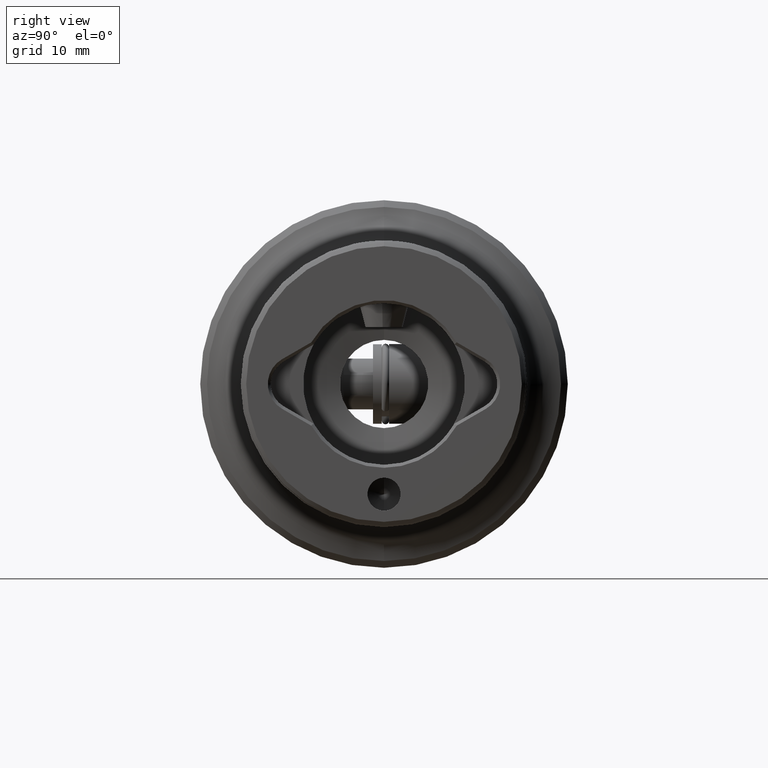
[diagram: clean part render]
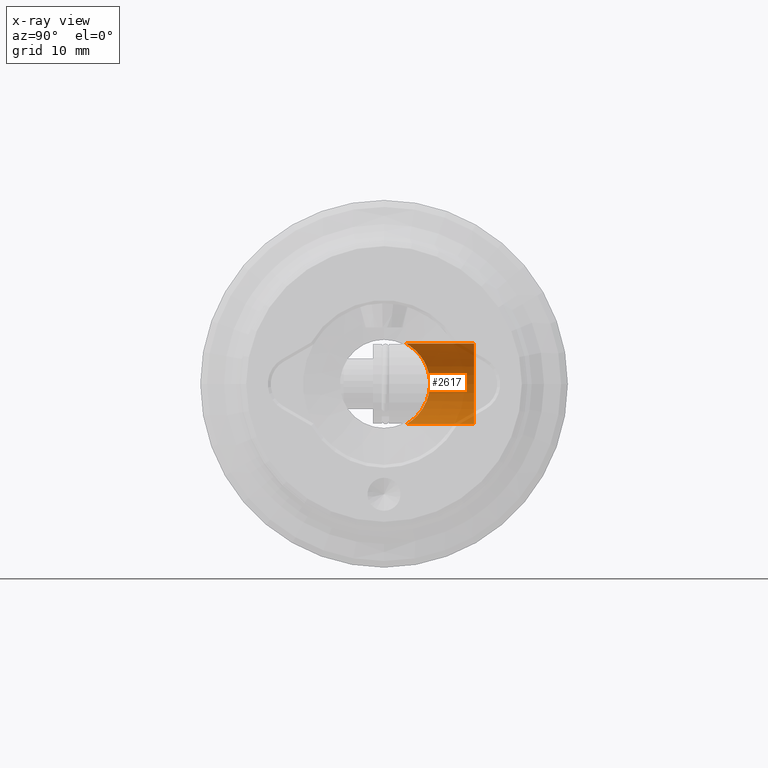
[diagram: x-ray — body ghosted, one internal face saturated and labeled with its STEP entity id]
A machine part, right view, then the same camera in x-ray: the body is ghosted and one INTERNAL B-rep face — a face not visible from any outside direction — is saturated and labeled: STEP entity #2617.
In plain terms, the highlighted cylindrical surface (partial cylindrical patch) has radius 5.5 mm, axis along (0, 1, 0).
Its self-contained STEP definition (entity closure, byte-faithful):
#8 = CARTESIAN_POINT ( 'NONE',  ( 22.50000000000000700, 2.968585521759487200, 5.499999999999996400 ) ) ;
#38 = FACE_OUTER_BOUND ( 'NONE', #5353, .T. ) ;
#144 = AXIS2_PLACEMENT_3D ( 'NONE', #1793, #4799, #2224 ) ;
#165 = CARTESIAN_POINT ( 'NONE',  ( 22.50000000000000700, -25.00000000000000000, -5.499999999999996400 ) ) ;
#206 = CARTESIAN_POINT ( 'NONE',  ( 22.50000000000000700, 2.968585521759487200, 5.499999999999996400 ) ) ;
#210 = CARTESIAN_POINT ( 'NONE',  ( 18.79748459643139200, 4.745055736843751100, -4.070631244202221700 ) ) ;
#416 = CARTESIAN_POINT ( 'NONE',  ( 19.17298075790106900, 4.454606669843920000, 4.392456829189876900 ) ) ;
#564 = VECTOR ( 'NONE', #3811, 1000.000000000000000 ) ;
#612 = CARTESIAN_POINT ( 'NONE',  ( 21.72916937340221100, 3.061285681054088000, -5.449108454026648100 ) ) ;
#627 = CARTESIAN_POINT ( 'NONE',  ( 18.21016640339858500, 5.215641007270033200, -3.459519080190087700 ) ) ;
#654 = CARTESIAN_POINT ( 'NONE',  ( 22.50000000000000700, 2.968585521759486800, -5.499999999999996400 ) ) ;
#828 = CARTESIAN_POINT ( 'NONE',  ( 16.99887135937604700, 6.250993202752751700, 0.3723303443689829900 ) ) ;
#842 = CARTESIAN_POINT ( 'NONE',  ( 20.02562587887231900, 3.856253520574957500, 4.923804579184304600 ) ) ;
#1019 = CIRCLE ( 'NONE', #1810, 5.499999999999998200 ) ;
#1033 = CARTESIAN_POINT ( 'NONE',  ( 21.18087411384810500, 3.244131601536866400, -5.342631782393732800 ) ) ;
#1056 = CARTESIAN_POINT ( 'NONE',  ( 17.81401226199082200, 5.546960356568337900, -2.885089781522731200 ) ) ;
#1184 = VERTEX_POINT ( 'NONE', #2763 ) ;
#1256 = CARTESIAN_POINT ( 'NONE',  ( 17.15976912786905800, 6.109844199950262400, 1.329900002426726200 ) ) ;
#1269 = CARTESIAN_POINT ( 'NONE',  ( 20.65816585437852000, 3.490447866518317600, 5.185465100041821700 ) ) ;
#1437 = DIRECTION ( 'NONE',  ( 0.0000000000000000000, 0.0000000000000000000, 1.000000000000000000 ) ) ;
#1466 = CARTESIAN_POINT ( 'NONE',  ( 20.66994730734429800, 3.484237801860867300, -5.189627656220222800 ) ) ;
#1481 = CARTESIAN_POINT ( 'NONE',  ( 17.55222084519617500, 5.769883443143622300, -2.409056519520630600 ) ) ;
#1550 = B_SPLINE_CURVE_WITH_KNOTS ( 'NONE', 3,
 ( #4882, #5283, #3158, #612, #3594, #1033, #4027, #1466, #4471, #1890, #4898, #2332, #5316, #2757, #210, #3188, #627, #3612, #1056, #4054, #1481, #4493, #1920, #4917, #3722, #2017, #3381, #828, #3812, #1256, #4253, #1681, #4688, #2118, #5112, #2542, #5545, #2969, #416, #3394, #842, #3833, #1269, #4267, #1705, #4703, #2134, #5130, #2569, #8 ),
 .UNSPECIFIED., .F., .F.,
 ( 4, 2, 2, 2, 2, 2, 2, 2, 2, 2, 2, 2, 2, 2, 2, 2, 2, 2, 2, 2, 2, 2, 2, 2, 4 ),
 ( 0.01866566868668882000, 0.01924635215223817800, 0.01982703561778754000, 0.02040771908333689800, 0.02098840254888625600, 0.02214976947998497500, 0.02273045294553433300, 0.02331113641108369100, 0.02447250334218240000, 0.02505318680773175500, 0.02563387027328110900, 0.02679523720437981100, 0.02737592066992916900, 0.02795660413547852000, 0.02911797106657723300, 0.02969865453212658400, 0.03027933799767593800, 0.03144070492877464000, 0.03260207185987334200, 0.03376343879097204500, 0.03492480572207074700, 0.03550548918762010100, 0.03608617265316944900, 0.03666685611871879600, 0.03724753958426815100 ),
 .UNSPECIFIED. ) ;
#1681 = CARTESIAN_POINT ( 'NONE',  ( 17.32576194744671100, 5.965266930458598800, 1.874349949850394200 ) ) ;
#1705 = CARTESIAN_POINT ( 'NONE',  ( 21.17255606656771100, 3.247488617877685200, 5.340603294495795500 ) ) ;
#1707 = AXIS2_PLACEMENT_3D ( 'NONE', #5294, #4421, #1437 ) ;
#1776 = EDGE_CURVE ( 'NONE', #2668, #1184, #4230, .T. ) ;
#1793 = CARTESIAN_POINT ( 'NONE',  ( 22.50000000000000000, 12.25000000000000400, 0.0000000000000000000 ) ) ;
#1810 = AXIS2_PLACEMENT_3D ( 'NONE', #2126, #5122, #2554 ) ;
#1890 = CARTESIAN_POINT ( 'NONE',  ( 20.03139634896901100, 3.852409457716512900, -4.926856620129651500 ) ) ;
#1920 = CARTESIAN_POINT ( 'NONE',  ( 17.20812631437595600, 6.067524070656792100, -1.547648818524278500 ) ) ;
#1954 = EDGE_CURVE ( 'NONE', #4660, #2339, #1019, .T. ) ;
#2017 = CARTESIAN_POINT ( 'NONE',  ( 17.01144386604009300, 6.239923727117971300, -0.4040045604167159500 ) ) ;
#2087 = LINE ( 'NONE', #165, #5506 ) ;
#2118 = CARTESIAN_POINT ( 'NONE',  ( 17.61658222818406100, 5.714415474576400200, 2.557034560383546500 ) ) ;
#2126 = CARTESIAN_POINT ( 'NONE',  ( 22.50000000000000000, 12.25000000000000400, 0.0000000000000000000 ) ) ;
#2134 = CARTESIAN_POINT ( 'NONE',  ( 21.71961150998809800, 3.063665197976626100, 5.447777115396821300 ) ) ;
#2224 = DIRECTION ( 'NONE',  ( -1.000000000000000000, 0.0000000000000000000, 0.0000000000000000000 ) ) ;
#2332 = CARTESIAN_POINT ( 'NONE',  ( 19.32176928805517600, 4.347901244624270400, -4.491835291804789200 ) ) ;
#2339 = VERTEX_POINT ( 'NONE', #4919 ) ;
#2460 = EDGE_CURVE ( 'NONE', #2339, #1184, #3225, .T. ) ;
#2542 = CARTESIAN_POINT ( 'NONE',  ( 18.20234979809977800, 5.222046976847603400, 3.450400710936227800 ) ) ;
#2554 = DIRECTION ( 'NONE',  ( -1.000000000000000000, 0.0000000000000000000, 0.0000000000000000000 ) ) ;
#2569 = CARTESIAN_POINT ( 'NONE',  ( 22.30289092589693900, 2.968585521759486800, 5.499999999999995600 ) ) ;
#2617 = ADVANCED_FACE ( 'NONE', ( #38 ), #4316, .F. ) ;
#2668 = VERTEX_POINT ( 'NONE', #206 ) ;
#2757 = CARTESIAN_POINT ( 'NONE',  ( 18.92502452302523600, 4.646034298057325700, -4.183034689046061200 ) ) ;
#2763 = CARTESIAN_POINT ( 'NONE',  ( 22.50000000000000700, 12.25000000000000400, 5.499999999999997300 ) ) ;
#2969 = CARTESIAN_POINT ( 'NONE',  ( 18.91005913312787400, 4.655983510645636900, 4.180465589481065600 ) ) ;
#3158 = CARTESIAN_POINT ( 'NONE',  ( 22.11154223884890900, 2.988007630231918700, -5.489632352575837300 ) ) ;
#3188 = CARTESIAN_POINT ( 'NONE',  ( 18.43247210225510800, 5.033390281638848100, -3.717506282552870200 ) ) ;
#3202 = ORIENTED_EDGE ( 'NONE', *, *, #1776, .F. ) ;
#3225 = CIRCLE ( 'NONE', #144, 5.499999999999998200 ) ;
#3380 = VERTEX_POINT ( 'NONE', #654 ) ;
#3381 = CARTESIAN_POINT ( 'NONE',  ( 17.00060061568871100, 6.249471458707964700, -0.2106370417194233500 ) ) ;
#3394 = CARTESIAN_POINT ( 'NONE',  ( 19.73198863252914800, 4.054176917226142200, 4.764540597281701700 ) ) ;
#3502 = CARTESIAN_POINT ( 'NONE',  ( 22.50000000000000700, 12.25000000000000400, -5.499999999999997300 ) ) ;
#3552 = DIRECTION ( 'NONE',  ( -0.0000000000000000000, 1.000000000000000000, -0.0000000000000000000 ) ) ;
#3594 = CARTESIAN_POINT ( 'NONE',  ( 21.54063487821537800, 3.115233246720214000, -5.418803007017586100 ) ) ;
#3612 = CARTESIAN_POINT ( 'NONE',  ( 17.90897423565572700, 5.466896036730500600, -3.033598287398870100 ) ) ;
#3707 = EDGE_CURVE ( 'NONE', #3380, #4660, #2087, .T. ) ;
#3722 = CARTESIAN_POINT ( 'NONE',  ( 17.05342533819622700, 6.203029520421762500, -0.7888552299779267900 ) ) ;
#3738 = EDGE_CURVE ( 'NONE', #3380, #2668, #1550, .T. ) ;
#3811 = DIRECTION ( 'NONE',  ( -0.0000000000000000000, 1.000000000000000000, -0.0000000000000000000 ) ) ;
#3812 = CARTESIAN_POINT ( 'NONE',  ( 17.04038428820256700, 6.214372473591107700, 0.7677209232234196700 ) ) ;
#3818 = ORIENTED_EDGE ( 'NONE', *, *, #1954, .T. ) ;
#3833 = CARTESIAN_POINT ( 'NONE',  ( 20.49620111293544500, 3.579333172633042600, 5.124830214409493900 ) ) ;
#4027 = CARTESIAN_POINT ( 'NONE',  ( 21.00740670727089600, 3.319435936950696100, -5.296554854865779500 ) ) ;
#4054 = CARTESIAN_POINT ( 'NONE',  ( 17.63585662719228600, 5.698261038930871400, -2.573389472464302500 ) ) ;
#4230 = LINE ( 'NONE', #5524, #564 ) ;
#4253 = CARTESIAN_POINT ( 'NONE',  ( 17.20900108826269900, 6.066822859713129300, 1.513690085515974300 ) ) ;
#4267 = CARTESIAN_POINT ( 'NONE',  ( 20.99577966971138200, 3.324688269741789000, 5.293271438503352600 ) ) ;
#4316 = CYLINDRICAL_SURFACE ( 'NONE', #1707, 5.499999999999996400 ) ;
#4421 = DIRECTION ( 'NONE',  ( -0.0000000000000000000, 1.000000000000000000, -0.0000000000000000000 ) ) ;
#4471 = CARTESIAN_POINT ( 'NONE',  ( 20.50539904268609000, 3.574153275941402100, -5.128454646029553900 ) ) ;
#4481 = ORIENTED_EDGE ( 'NONE', *, *, #3738, .F. ) ;
#4493 = CARTESIAN_POINT ( 'NONE',  ( 17.32664232048484400, 5.964082092929812600, -1.903328094581946000 ) ) ;
#4519 = ORIENTED_EDGE ( 'NONE', *, *, #3707, .T. ) ;
#4626 = ORIENTED_EDGE ( 'NONE', *, *, #2460, .T. ) ;
#4660 = VERTEX_POINT ( 'NONE', #3502 ) ;
#4688 = CARTESIAN_POINT ( 'NONE',  ( 17.39320526142654800, 5.906811430240449700, 2.050535592802358800 ) ) ;
#4703 = CARTESIAN_POINT ( 'NONE',  ( 21.53403327360401700, 3.117237020719331000, 5.417661786147355100 ) ) ;
#4799 = DIRECTION ( 'NONE',  ( -7.788848799642570100E-017, 1.000000000000000000, -0.0000000000000000000 ) ) ;
#4882 = CARTESIAN_POINT ( 'NONE',  ( 22.50000000000000700, 2.968585521759486800, -5.499999999999996400 ) ) ;
#4898 = CARTESIAN_POINT ( 'NONE',  ( 19.73816166420543200, 4.050016060670404100, -4.767933304393527500 ) ) ;
#4917 = CARTESIAN_POINT ( 'NONE',  ( 17.08486436465920700, 6.175418954207698300, -0.9816272425837624400 ) ) ;
#4919 = CARTESIAN_POINT ( 'NONE',  ( 17.00000000000000000, 12.25000000000000400, 0.0000000000000000000 ) ) ;
#5112 = CARTESIAN_POINT ( 'NONE',  ( 17.79585495514994200, 5.561380941231910800, 2.871599157426900600 ) ) ;
#5122 = DIRECTION ( 'NONE',  ( -7.788848799642570100E-017, 1.000000000000000000, -0.0000000000000000000 ) ) ;
#5130 = CARTESIAN_POINT ( 'NONE',  ( 22.10356454852695800, 2.989013100863681800, 5.489091056559336900 ) ) ;
#5283 = CARTESIAN_POINT ( 'NONE',  ( 22.30468601084736200, 2.968585521759487600, -5.499999999999996400 ) ) ;
#5294 = CARTESIAN_POINT ( 'NONE',  ( 22.50000000000000700, -25.00000000000000000, 0.0000000000000000000 ) ) ;
#5316 = CARTESIAN_POINT ( 'NONE',  ( 19.18701970683561700, 4.447586251063555100, -4.393448582587273800 ) ) ;
#5353 = EDGE_LOOP ( 'NONE', ( #4481, #4519, #3818, #4626, #3202 ) ) ;
#5506 = VECTOR ( 'NONE', #3552, 1000.000000000000000 ) ;
#5524 = CARTESIAN_POINT ( 'NONE',  ( 22.50000000000000700, -25.00000000000000000, 5.499999999999996400 ) ) ;
#5545 = CARTESIAN_POINT ( 'NONE',  ( 18.42573816780463500, 5.038860635208065400, 3.710034837463111600 ) ) ;